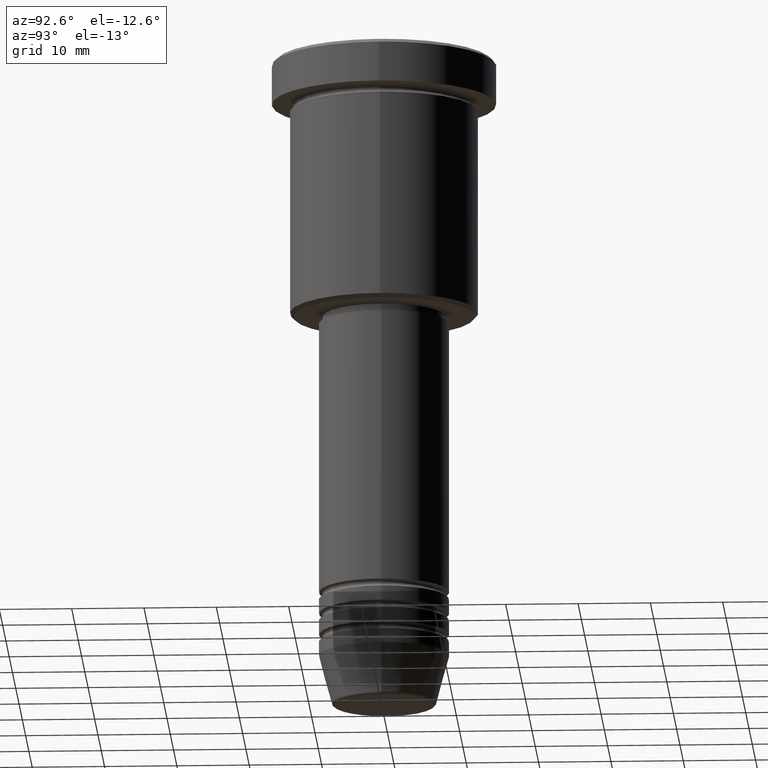
[diagram: clean part render]
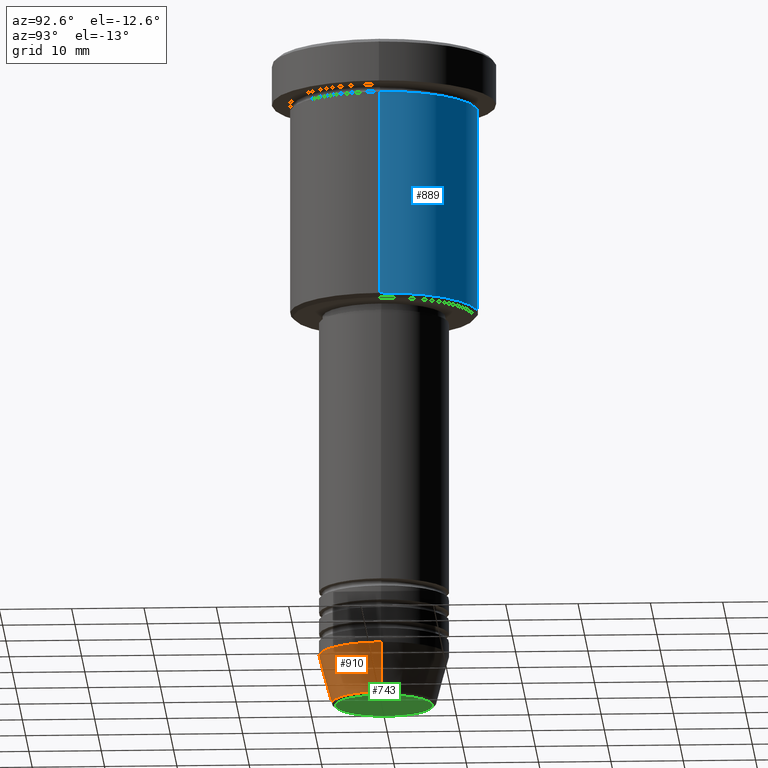
[diagram: same view with three faces highlighted in distinct colors, each labeled with its STEP entity id]
A machine part, auxiliary view with three faces highlighted in distinct colors.
Their STEP definitions:

[orange] entity #910 — the highlighted conical surface has half-angle 15 deg.
#13 = ORIENTED_EDGE ( 'NONE', *, *, #871, .T. ) ;
#51 = LINE ( 'NONE', #342, #245 ) ;
#119 = EDGE_LOOP ( 'NONE', ( #963, #1133, #13, #819 ) ) ;
#240 = EDGE_CURVE ( 'NONE', #274, #929, #483, .T. ) ;
#245 = VECTOR ( 'NONE', #695, 1000.000000000000000 ) ;
#255 = DIRECTION ( 'NONE',  ( 1.000000000000000000, 0.000000000000000000, 0.000000000000000000 ) ) ;
#266 = CARTESIAN_POINT ( 'NONE',  ( 7.223655072137188604, 0.000000000000000000, -90.62940952255125637 ) ) ;
#274 = VERTEX_POINT ( 'NONE', #1024 ) ;
#336 = AXIS2_PLACEMENT_3D ( 'NONE', #534, #1074, #255 ) ;
#342 = CARTESIAN_POINT ( 'NONE',  ( 9.000000000000000000, 0.000000000000000000, -83.99999999999998579 ) ) ;
#455 = CARTESIAN_POINT ( 'NONE',  ( 0.000000000000000000, 0.000000000000000000, -90.62940952255125637 ) ) ;
#464 = VERTEX_POINT ( 'NONE', #490 ) ;
#483 = CIRCLE ( 'NONE', #725, 7.223655072137188604 ) ;
#490 = CARTESIAN_POINT ( 'NONE',  ( 9.000000000000000000, 0.000000000000000000, -83.99999999999998579 ) ) ;
#527 = VECTOR ( 'NONE', #961, 1000.000000000000000 ) ;
#534 = CARTESIAN_POINT ( 'NONE',  ( 0.000000000000000000, 0.000000000000000000, -83.99999999999998579 ) ) ;
#539 = CARTESIAN_POINT ( 'NONE',  ( 0.000000000000000000, 0.000000000000000000, -83.99999999999998579 ) ) ;
#583 = AXIS2_PLACEMENT_3D ( 'NONE', #539, #903, #736 ) ;
#605 = DIRECTION ( 'NONE',  ( 1.000000000000000000, 0.000000000000000000, 0.000000000000000000 ) ) ;
#674 = LINE ( 'NONE', #769, #527 ) ;
#695 = DIRECTION ( 'NONE',  ( 0.2588190451025213501, 0.000000000000000000, 0.9659258262890680902 ) ) ;
#708 = CARTESIAN_POINT ( 'NONE',  ( -9.000000000000000000, 1.102182119232617714E-15, -83.99999999999998579 ) ) ;
#725 = AXIS2_PLACEMENT_3D ( 'NONE', #455, #818, #605 ) ;
#736 = DIRECTION ( 'NONE',  ( 1.000000000000000000, 0.000000000000000000, 0.000000000000000000 ) ) ;
#769 = CARTESIAN_POINT ( 'NONE',  ( -9.000000000000000000, 1.102182119232617714E-15, -83.99999999999998579 ) ) ;
#774 = CIRCLE ( 'NONE', #583, 9.000000000000000000 ) ;
#818 = DIRECTION ( 'NONE',  ( -0.000000000000000000, -0.000000000000000000, 1.000000000000000000 ) ) ;
#819 = ORIENTED_EDGE ( 'NONE', *, *, #1072, .F. ) ;
#862 = EDGE_CURVE ( 'NONE', #274, #1015, #674, .T. ) ;
#871 = EDGE_CURVE ( 'NONE', #929, #464, #51, .T. ) ;
#875 = CONICAL_SURFACE ( 'NONE', #336, 9.000000000000000000, 0.2617993877991500740 ) ;
#903 = DIRECTION ( 'NONE',  ( -0.000000000000000000, -0.000000000000000000, 1.000000000000000000 ) ) ;
#910 = ADVANCED_FACE ( 'NONE', ( #1087 ), #875, .T. ) ;
#929 = VERTEX_POINT ( 'NONE', #266 ) ;
#961 = DIRECTION ( 'NONE',  ( -0.2588190451025213501, 3.169619151431772337E-17, 0.9659258262890680902 ) ) ;
#963 = ORIENTED_EDGE ( 'NONE', *, *, #862, .F. ) ;
#1015 = VERTEX_POINT ( 'NONE', #708 ) ;
#1024 = CARTESIAN_POINT ( 'NONE',  ( -7.223655072137189492, 9.934123627281765110E-16, -90.62940952255125637 ) ) ;
#1072 = EDGE_CURVE ( 'NONE', #1015, #464, #774, .T. ) ;
#1074 = DIRECTION ( 'NONE',  ( -0.000000000000000000, -0.000000000000000000, 1.000000000000000000 ) ) ;
#1087 = FACE_OUTER_BOUND ( 'NONE', #119, .T. ) ;
#1133 = ORIENTED_EDGE ( 'NONE', *, *, #240, .T. ) ;

[blue] entity #889 — the highlighted cylindrical surface (partial cylindrical patch) has radius 13 mm, axis along (-0, -0, 1).
#11 = VERTEX_POINT ( 'NONE', #420 ) ;
#23 = AXIS2_PLACEMENT_3D ( 'NONE', #1162, #167, #250 ) ;
#50 = CARTESIAN_POINT ( 'NONE',  ( 13.00000000000000000, 0.000000000000000000, -35.50000000000000000 ) ) ;
#75 = CARTESIAN_POINT ( 'NONE',  ( -13.00000000000000000, 1.592040838891559095E-15, -6.999999999999995559 ) ) ;
#138 = CIRCLE ( 'NONE', #292, 13.00000000000000000 ) ;
#163 = DIRECTION ( 'NONE',  ( -0.000000000000000000, -0.000000000000000000, 1.000000000000000000 ) ) ;
#167 = DIRECTION ( 'NONE',  ( -0.000000000000000000, -0.000000000000000000, 1.000000000000000000 ) ) ;
#210 = VERTEX_POINT ( 'NONE', #999 ) ;
#232 = DIRECTION ( 'NONE',  ( -1.000000000000000000, 0.000000000000000000, 0.000000000000000000 ) ) ;
#235 = EDGE_CURVE ( 'NONE', #210, #681, #138, .T. ) ;
#250 = DIRECTION ( 'NONE',  ( 1.000000000000000000, 0.000000000000000000, 0.000000000000000000 ) ) ;
#292 = AXIS2_PLACEMENT_3D ( 'NONE', #727, #1007, #545 ) ;
#420 = CARTESIAN_POINT ( 'NONE',  ( -13.00000000000000000, 1.592040838891559095E-15, -35.50000000000000000 ) ) ;
#428 = EDGE_CURVE ( 'NONE', #487, #11, #951, .T. ) ;
#438 = VECTOR ( 'NONE', #596, 1000.000000000000000 ) ;
#440 = CYLINDRICAL_SURFACE ( 'NONE', #23, 13.00000000000000000 ) ;
#445 = LINE ( 'NONE', #973, #698 ) ;
#487 = VERTEX_POINT ( 'NONE', #50 ) ;
#540 = EDGE_CURVE ( 'NONE', #487, #210, #775, .T. ) ;
#545 = DIRECTION ( 'NONE',  ( 1.000000000000000000, 0.000000000000000000, 0.000000000000000000 ) ) ;
#565 = EDGE_LOOP ( 'NONE', ( #1041, #847, #778, #646 ) ) ;
#591 = DIRECTION ( 'NONE',  ( -0.000000000000000000, -0.000000000000000000, 1.000000000000000000 ) ) ;
#596 = DIRECTION ( 'NONE',  ( -0.000000000000000000, -0.000000000000000000, 1.000000000000000000 ) ) ;
#646 = ORIENTED_EDGE ( 'NONE', *, *, #540, .F. ) ;
#681 = VERTEX_POINT ( 'NONE', #75 ) ;
#698 = VECTOR ( 'NONE', #163, 1000.000000000000000 ) ;
#727 = CARTESIAN_POINT ( 'NONE',  ( 0.000000000000000000, 0.000000000000000000, -6.999999999999995559 ) ) ;
#775 = LINE ( 'NONE', #958, #438 ) ;
#778 = ORIENTED_EDGE ( 'NONE', *, *, #235, .F. ) ;
#786 = FACE_OUTER_BOUND ( 'NONE', #565, .T. ) ;
#847 = ORIENTED_EDGE ( 'NONE', *, *, #1034, .T. ) ;
#889 = ADVANCED_FACE ( 'NONE', ( #786 ), #440, .T. ) ;
#951 = CIRCLE ( 'NONE', #1145, 13.00000000000000000 ) ;
#958 = CARTESIAN_POINT ( 'NONE',  ( 13.00000000000000000, 0.000000000000000000, 0.000000000000000000 ) ) ;
#973 = CARTESIAN_POINT ( 'NONE',  ( -13.00000000000000000, 1.592040838891559095E-15, 0.000000000000000000 ) ) ;
#999 = CARTESIAN_POINT ( 'NONE',  ( 13.00000000000000000, 0.000000000000000000, -6.999999999999995559 ) ) ;
#1007 = DIRECTION ( 'NONE',  ( -0.000000000000000000, -0.000000000000000000, 1.000000000000000000 ) ) ;
#1034 = EDGE_CURVE ( 'NONE', #11, #681, #445, .T. ) ;
#1041 = ORIENTED_EDGE ( 'NONE', *, *, #428, .T. ) ;
#1145 = AXIS2_PLACEMENT_3D ( 'NONE', #1146, #591, #232 ) ;
#1146 = CARTESIAN_POINT ( 'NONE',  ( 0.000000000000000000, 0.000000000000000000, -35.50000000000000000 ) ) ;
#1162 = CARTESIAN_POINT ( 'NONE',  ( 0.000000000000000000, 0.000000000000000000, 0.000000000000000000 ) ) ;

[green] entity #743 — the highlighted planar face has unit normal (0, -0, 1).
#28 = ORIENTED_EDGE ( 'NONE', *, *, #376, .T. ) ;
#58 = DIRECTION ( 'NONE',  ( 1.000000000000000000, 0.000000000000000000, 0.000000000000000000 ) ) ;
#121 = DIRECTION ( 'NONE',  ( 0.000000000000000000, -0.000000000000000000, 1.000000000000000000 ) ) ;
#123 = AXIS2_PLACEMENT_3D ( 'NONE', #1089, #691, #348 ) ;
#193 = DIRECTION ( 'NONE',  ( 1.000000000000000000, 0.000000000000000000, 0.000000000000000000 ) ) ;
#208 = DIRECTION ( 'NONE',  ( 0.000000000000000000, 0.000000000000000000, -1.000000000000000000 ) ) ;
#253 = CARTESIAN_POINT ( 'NONE',  ( 6.740692158992653837, 0.000000000000000000, -91.00000000000000000 ) ) ;
#261 = CIRCLE ( 'NONE', #123, 6.740692158992653837 ) ;
#321 = CARTESIAN_POINT ( 'NONE',  ( 0.000000000000000000, 0.000000000000000000, -91.00000000000000000 ) ) ;
#348 = DIRECTION ( 'NONE',  ( 1.000000000000000000, 0.000000000000000000, 0.000000000000000000 ) ) ;
#376 = EDGE_CURVE ( 'NONE', #1004, #407, #413, .T. ) ;
#407 = VERTEX_POINT ( 'NONE', #850 ) ;
#413 = CIRCLE ( 'NONE', #772, 6.740692158992653837 ) ;
#461 = CARTESIAN_POINT ( 'NONE',  ( 0.000000000000000000, 0.000000000000000000, -91.00000000000000000 ) ) ;
#533 = ORIENTED_EDGE ( 'NONE', *, *, #572, .T. ) ;
#572 = EDGE_CURVE ( 'NONE', #407, #1004, #261, .T. ) ;
#575 = PLANE ( 'NONE',  #1019 ) ;
#691 = DIRECTION ( 'NONE',  ( 0.000000000000000000, 0.000000000000000000, -1.000000000000000000 ) ) ;
#743 = ADVANCED_FACE ( 'NONE', ( #1149 ), #575, .F. ) ;
#772 = AXIS2_PLACEMENT_3D ( 'NONE', #461, #208, #193 ) ;
#843 = EDGE_LOOP ( 'NONE', ( #28, #533 ) ) ;
#850 = CARTESIAN_POINT ( 'NONE',  ( -6.740692158992653837, 8.550696569392682723E-16, -91.00000000000000000 ) ) ;
#1004 = VERTEX_POINT ( 'NONE', #253 ) ;
#1019 = AXIS2_PLACEMENT_3D ( 'NONE', #321, #121, #58 ) ;
#1089 = CARTESIAN_POINT ( 'NONE',  ( 0.000000000000000000, 0.000000000000000000, -91.00000000000000000 ) ) ;
#1149 = FACE_OUTER_BOUND ( 'NONE', #843, .T. ) ;